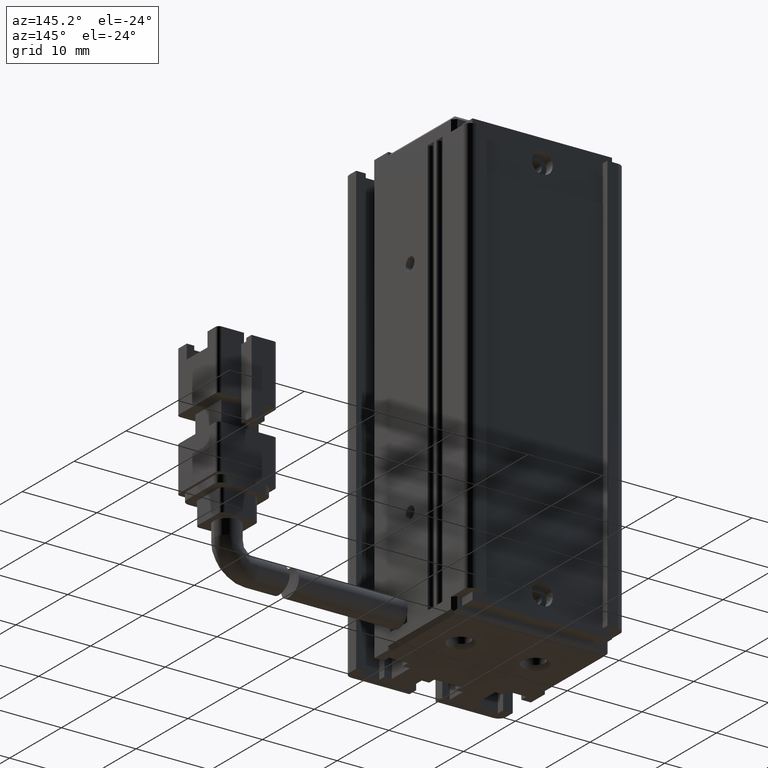
[diagram: clean part render]
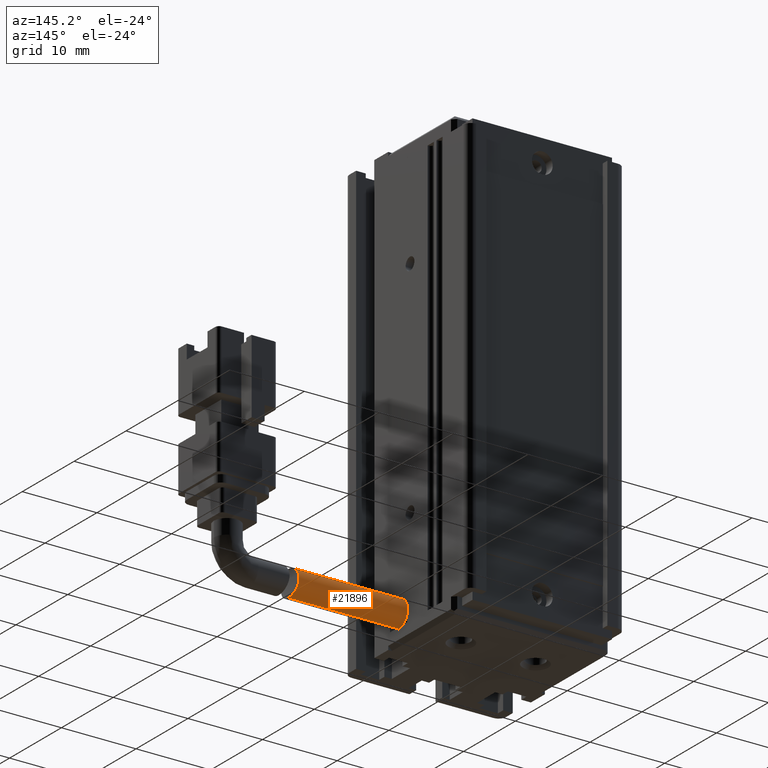
[diagram: same view with one face highlighted and labeled with its STEP entity id]
A machine part, auxiliary view. The second image highlights one B-rep face of the part: STEP entity #21896.
In plain terms, the highlighted cylindrical surface (edge-blend (fillet) strip) has radius 1.75 mm, axis along (-1, -0, -0).
Its self-contained STEP definition (entity closure, byte-faithful):
#1013 = VECTOR ( 'NONE', #21379, 1000.000000000000000 ) ;
#1361 = CARTESIAN_POINT ( 'NONE',  ( 55.60664507071450700, 18.46089904319699600, -139.9313779437375200 ) ) ;
#1595 = CYLINDRICAL_SURFACE ( 'NONE', #14107, 1.750000000000001600 ) ;
#1839 = CARTESIAN_POINT ( 'NONE',  ( 55.67113496622536000, 18.36189929486539500, -143.0216747521504300 ) ) ;
#2016 = CARTESIAN_POINT ( 'NONE',  ( 55.48855349268927000, 19.32238839217925600, -141.6799364845564600 ) ) ;
#2108 = CARTESIAN_POINT ( 'NONE',  ( 40.92537974683537500, 17.58379746835454300, -141.4499999999999600 ) ) ;
#2810 = AXIS2_PLACEMENT_3D ( 'NONE', #2108, #19549, #6621 ) ;
#3138 = ORIENTED_EDGE ( 'NONE', *, *, #22865, .T. ) ;
#3149 = ORIENTED_EDGE ( 'NONE', *, *, #7935, .T. ) ;
#3205 = VERTEX_POINT ( 'NONE', #8533 ) ;
#3559 = CARTESIAN_POINT ( 'NONE',  ( 55.47024437261942600, 19.28727451156201400, -140.9887505292055300 ) ) ;
#3747 = CARTESIAN_POINT ( 'NONE',  ( 55.62463420223006200, 18.74153990855368300, -142.7673024940899300 ) ) ;
#4043 = CARTESIAN_POINT ( 'NONE',  ( 55.70621967933268300, 17.81589383775427400, -143.2000000000000200 ) ) ;
#4132 = CARTESIAN_POINT ( 'NONE',  ( 55.50678294115662900, 19.27769859378787500, -141.9041675512314400 ) ) ;
#5570 = DIRECTION ( 'NONE',  ( -1.000000000000000000, -3.304235192336770000E-015, -8.579261317967046800E-031 ) ) ;
#5744 = CARTESIAN_POINT ( 'NONE',  ( 60.92537974683537500, 17.58379746835461100, -143.1999999999999600 ) ) ;
#6195 = LINE ( 'NONE', #5744, #1013 ) ;
#6337 = CARTESIAN_POINT ( 'NONE',  ( 55.46799919059766600, 19.33368179683941800, -141.2199166147517200 ) ) ;
#6532 = CARTESIAN_POINT ( 'NONE',  ( 60.92537974683537500, 17.58379746835461100, -141.4499999999999600 ) ) ;
#6621 = DIRECTION ( 'NONE',  ( 0.0000000000000000000, 0.0000000000000000000, 1.000000000000000000 ) ) ;
#7742 = VERTEX_POINT ( 'NONE', #18297 ) ;
#7803 = CARTESIAN_POINT ( 'NONE',  ( 55.65272929082432500, 18.03797710559329200, -139.7561066842592700 ) ) ;
#7898 = CARTESIAN_POINT ( 'NONE',  ( 55.56343873949747800, 18.74016058887081800, -140.1315777397997000 ) ) ;
#7935 = EDGE_CURVE ( 'NONE', #11413, #7742, #6195, .T. ) ;
#8087 = CARTESIAN_POINT ( 'NONE',  ( 55.66564187166542900, 17.81388093968112700, -139.7114329739075900 ) ) ;
#8381 = CARTESIAN_POINT ( 'NONE',  ( 55.51781632386868600, 19.24464255871041400, -142.0132809039903300 ) ) ;
#8533 = CARTESIAN_POINT ( 'NONE',  ( 55.66909918599568400, 17.58379746835459300, -139.6999999999999600 ) ) ;
#10094 = CARTESIAN_POINT ( 'NONE',  ( 55.52159805663031700, 18.98134885199781900, -140.3725020553220000 ) ) ;
#10101 = ORIENTED_EDGE ( 'NONE', *, *, #20243, .T. ) ;
#10378 = CARTESIAN_POINT ( 'NONE',  ( 55.55492445293651100, 19.11284061511919300, -142.3316429091015600 ) ) ;
#10821 = B_SPLINE_CURVE_WITH_KNOTS ( 'NONE', 3,
 ( #20931, #18919, #8087, #7803, #23415, #23130, #1361, #14389, #7898, #10094, #16685, #3559, #6337, #12679, #2016, #4132, #8381, #10378, #15138, #3747, #17046, #15044, #1839, #19099, #4043, #19280 ),
 .UNSPECIFIED., .F., .F.,
 ( 4, 2, 2, 2, 2, 2, 2, 2, 2, 2, 2, 2, 4 ),
 ( 0.005490571999675114000, 0.005833718808239202900, 0.006176865616803290900, 0.006520012425367379700, 0.006863159233931468600, 0.007549452851059596800, 0.008235746468187725100, 0.008578893276751830400, 0.008922040085315937500, 0.009608333702444151600, 0.009951480511008262100, 0.01029462731957237300, 0.01098092093670055000 ),
 .UNSPECIFIED. ) ;
#11019 = DIRECTION ( 'NONE',  ( 0.0000000000000000000, 0.0000000000000000000, 1.000000000000000000 ) ) ;
#11413 = VERTEX_POINT ( 'NONE', #20182 ) ;
#12275 = CARTESIAN_POINT ( 'NONE',  ( 60.92537974683537500, 17.58379746835461100, -139.6999999999999600 ) ) ;
#12679 = CARTESIAN_POINT ( 'NONE',  ( 55.48134991565429900, 19.33385497111003900, -141.5637194744110400 ) ) ;
#13185 = VECTOR ( 'NONE', #5570, 1000.000000000000000 ) ;
#13578 = CARTESIAN_POINT ( 'NONE',  ( 40.92537974683537500, 17.58379746835454300, -139.6999999999999600 ) ) ;
#14107 = AXIS2_PLACEMENT_3D ( 'NONE', #6532, #19748, #11019 ) ;
#14389 = CARTESIAN_POINT ( 'NONE',  ( 55.57835221810201200, 18.65067258446814300, -140.0581316121933400 ) ) ;
#15044 = CARTESIAN_POINT ( 'NONE',  ( 55.66064130294125100, 18.46447579045407000, -142.9665380968414800 ) ) ;
#15138 = CARTESIAN_POINT ( 'NONE',  ( 55.58400798320374700, 18.98457160922038500, -142.5237529889949700 ) ) ;
#15261 = EDGE_CURVE ( 'NONE', #3205, #22455, #22789, .T. ) ;
#16685 = CARTESIAN_POINT ( 'NONE',  ( 55.49693793915957900, 19.11200672183655800, -140.5672986979645900 ) ) ;
#17046 = CARTESIAN_POINT ( 'NONE',  ( 55.63743220877904600, 18.65368483946463800, -142.8395406144933900 ) ) ;
#18297 = CARTESIAN_POINT ( 'NONE',  ( 40.92537974683537500, 17.58379746835456800, -143.1999999999999600 ) ) ;
#18919 = CARTESIAN_POINT ( 'NONE',  ( 55.66909918599569800, 17.69987373534211600, -139.7000000000000200 ) ) ;
#18928 = CIRCLE ( 'NONE', #2810, 1.750000000000001600 ) ;
#19099 = CARTESIAN_POINT ( 'NONE',  ( 55.69668055208007500, 18.04484427152810300, -143.1536289975071000 ) ) ;
#19280 = CARTESIAN_POINT ( 'NONE',  ( 55.70621967933267600, 17.58379746835458900, -143.1999999999999600 ) ) ;
#19549 = DIRECTION ( 'NONE',  ( 1.000000000000000000, 3.304235192336770000E-015, 8.579261317967046800E-031 ) ) ;
#19748 = DIRECTION ( 'NONE',  ( -1.000000000000000000, -3.304235192336770000E-015, -8.579261317967046800E-031 ) ) ;
#20182 = CARTESIAN_POINT ( 'NONE',  ( 55.70621967933267600, 17.58379746835458900, -143.1999999999999600 ) ) ;
#20243 = EDGE_CURVE ( 'NONE', #7742, #22455, #18928, .T. ) ;
#20931 = CARTESIAN_POINT ( 'NONE',  ( 55.66909918599568400, 17.58379746835459300, -139.6999999999999600 ) ) ;
#21379 = DIRECTION ( 'NONE',  ( -1.000000000000000000, -3.304235192336770000E-015, -8.579261317967046800E-031 ) ) ;
#21896 = ADVANCED_FACE ( 'NONE', ( #23197 ), #1595, .T. ) ;
#22455 = VERTEX_POINT ( 'NONE', #13578 ) ;
#22789 = LINE ( 'NONE', #12275, #13185 ) ;
#22865 = EDGE_CURVE ( 'NONE', #3205, #11413, #10821, .T. ) ;
#23130 = CARTESIAN_POINT ( 'NONE',  ( 55.62003836585692100, 18.36067830432336100, -139.8777216974356200 ) ) ;
#23197 = FACE_OUTER_BOUND ( 'NONE', #26470, .T. ) ;
#23415 = CARTESIAN_POINT ( 'NONE',  ( 55.64312513808747700, 18.14924902229548900, -139.7899194494976600 ) ) ;
#24499 = ORIENTED_EDGE ( 'NONE', *, *, #15261, .F. ) ;
#26470 = EDGE_LOOP ( 'NONE', ( #3138, #3149, #10101, #24499 ) ) ;